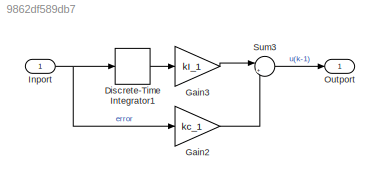
MODEL slx_9862df589db7
KIND model
CONFIG AbsTol = auto
CONFIG EnableMultiTasking = off
CONFIG FixedStep = auto
CONFIG MaxStep = auto
CONFIG MinStep = auto
CONFIG RelTol = 1e-3
CONFIG SampleTimeConstraint = Unconstrained
CONFIG SolverName = FixedStepDiscrete
CONFIG StartTime = 0.0
CONFIG StopTime = 10.0
BLOCK [DiscreteIntegrator] Discrete-Time Integrator1
  ICPrevOutput = DiscIntNeverNeededParam
  ICPrevScaledInput = DiscIntNeverNeededParam
  InitialConditionSetting = Auto
  SampleTime = -1
BLOCK [Gain] Gain2
  Gain = kc_1
BLOCK [Gain] Gain3
  Gain = kI_1
BLOCK [Inport] Inport
BLOCK [Outport] Outport
BLOCK [Sum] Sum3
  Inputs = |++
LINE Discrete-Time Integrator1:1 -> Gain3:1
LINE Gain2:1 -> Sum3:2
LINE Gain3:1 -> Sum3:1
NET Inport:1 -> Discrete-Time Integrator1:1, Gain2:1
LINE Sum3:1 -> Outport:1
note: NET lines group one-source signal fan-out (src -> all destinations, sorted); 1:1 wires keep LINE
